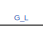
[diagram: root canvas - part 1/4, top center region]
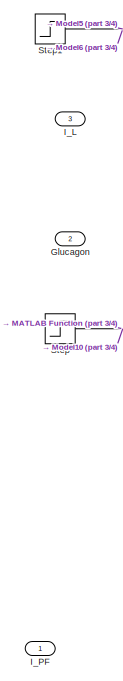
[diagram: root canvas - part 2/4, middle left region]
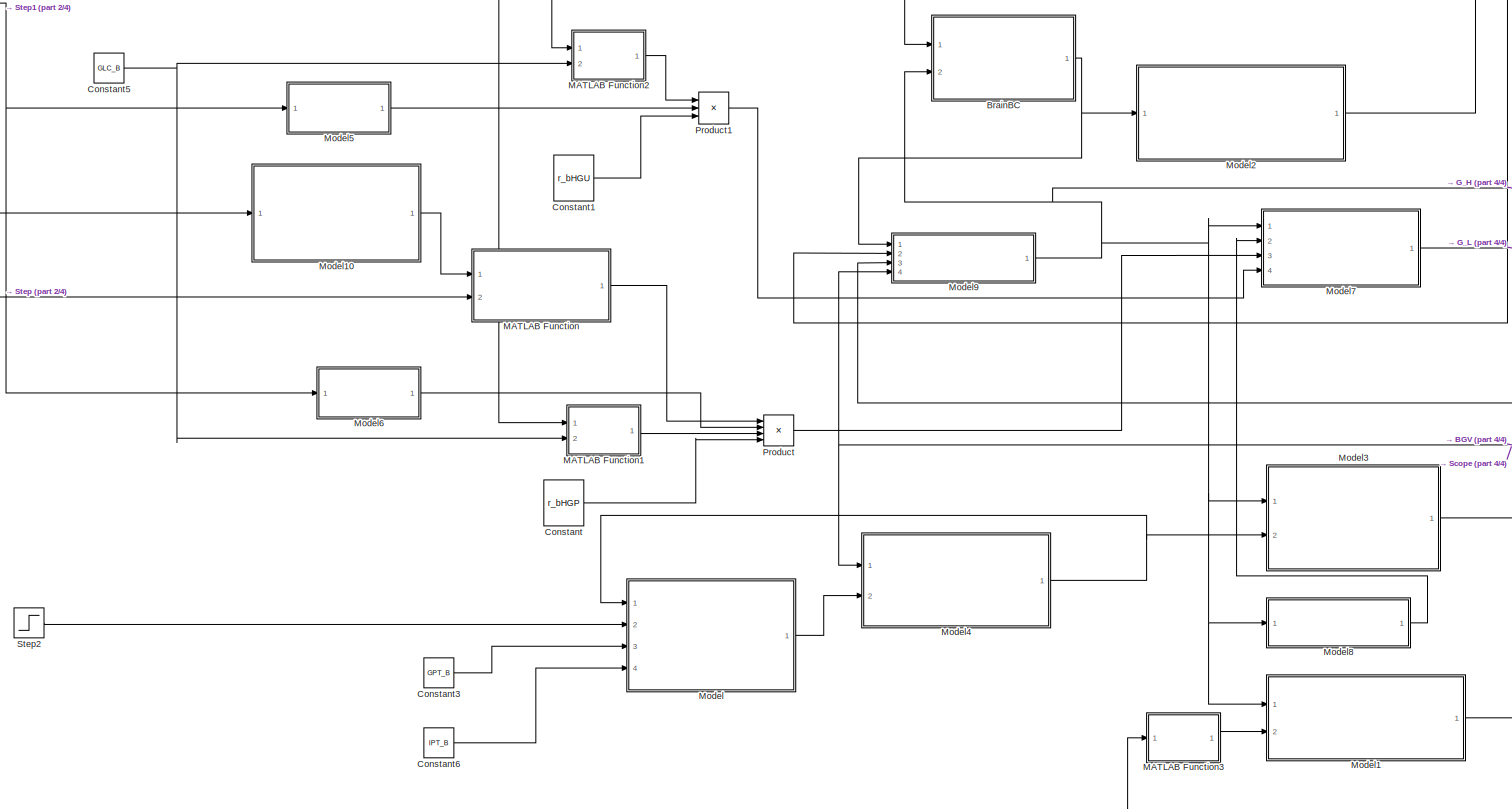
[diagram: root canvas - part 3/4, most of the canvas]
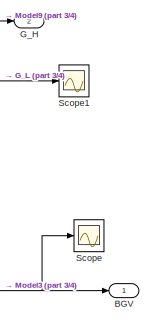
[diagram: root canvas - part 4/4, middle right region]
MODEL slx_8afd37e5c22d
KIND model
CONFIG AbsTol = auto
CONFIG EnableMultiTasking = off
CONFIG FixedStep = auto
CONFIG MaxStep = auto
CONFIG MinStep = auto
CONFIG RelTol = 1e-3
CONFIG SampleTimeConstraint = Unconstrained
CONFIG Solver = VariableStepAuto
CONFIG SolverName = VariableStepAuto
CONFIG StartTime = 0.0
CONFIG StopTime = 100
BLOCK [Outport] BGV
  IconDisplay = Port number
  OutMin = 0
BLOCK [ModelReference] BrainBC
  ModelNameDialog = BrainBC
  ModelReferenceVersion = 1.6
  Ports = [2, 1]
BLOCK [Constant] Constant
  Value = r_bHGP
BLOCK [Constant] Constant1
  Value = r_bHGU
BLOCK [Constant] Constant3
  Value = GPT_B
BLOCK [Constant] Constant5
  Value = GLC_B
BLOCK [Constant] Constant6
  Value = IPT_B
BLOCK [Outport] G_H
  IconDisplay = Port number
  OutMin = 0
  Port = 2
BLOCK [Inport] Glucagon
  IconDisplay = Port number
  Port = 2
BLOCK [Inport] I_L
  IconDisplay = Port number
  Port = 3
BLOCK [Inport] I_PF
  IconDisplay = Port number
  OutMin = 0
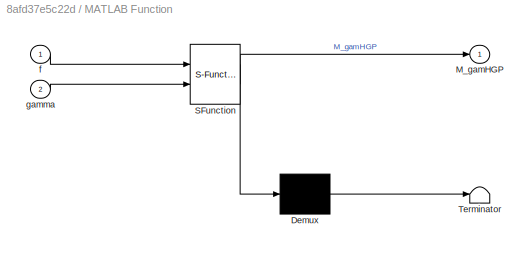
BLOCK [SubSystem] MATLAB Function
  ErrorFcn = Stateflow.Translate.translate
  PermitHierarchicalResolution = ExplicitOnly
  Ports = [2, 1]
  RequestExecContextInheritance = off
  SFBlockType = MATLAB Function
  TreatAsAtomicUnit = on
BLOCK [Demux] MATLAB Function/ Demux 
  Outputs = 1
  Ports = [1, 1]
BLOCK [S-Function] MATLAB Function/ SFunction 
  EnableBusSupport = on
  FunctionName = sf_sfun
  PortCounts = [2 2]
  Ports = [2, 2]
  SFcnIsStateOwnerBlock = off
  SFunctionDeploymentMode = off
  Tag = Stateflow S-Function glucose_subsystem 2
BLOCK [Terminator] MATLAB Function/ Terminator 
BLOCK [Outport] MATLAB Function/M_gamHGP
  IconDisplay = Port number
BLOCK [Inport] MATLAB Function/f
  IconDisplay = Port number
BLOCK [Inport] MATLAB Function/gamma
  IconDisplay = Port number
  Port = 2
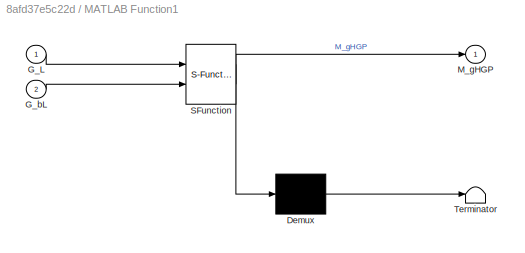
BLOCK [SubSystem] MATLAB Function1
  ErrorFcn = Stateflow.Translate.translate
  PermitHierarchicalResolution = ExplicitOnly
  Ports = [2, 1]
  RequestExecContextInheritance = off
  SFBlockType = MATLAB Function
  TreatAsAtomicUnit = on
BLOCK [Demux] MATLAB Function1/ Demux 
  Outputs = 1
  Ports = [1, 1]
BLOCK [S-Function] MATLAB Function1/ SFunction 
  EnableBusSupport = on
  FunctionName = sf_sfun
  PortCounts = [2 2]
  Ports = [2, 2]
  SFcnIsStateOwnerBlock = off
  SFunctionDeploymentMode = off
  Tag = Stateflow S-Function glucose_subsystem 1
BLOCK [Terminator] MATLAB Function1/ Terminator 
BLOCK [Inport] MATLAB Function1/G_L
  IconDisplay = Port number
BLOCK [Inport] MATLAB Function1/G_bL
  IconDisplay = Port number
  Port = 2
BLOCK [Outport] MATLAB Function1/M_gHGP
  IconDisplay = Port number
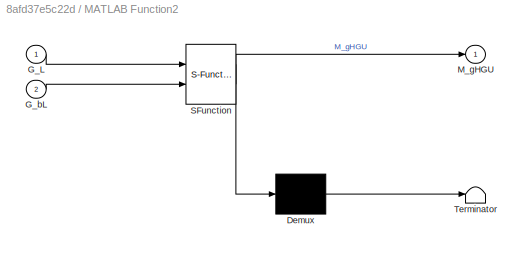
BLOCK [SubSystem] MATLAB Function2
  ErrorFcn = Stateflow.Translate.translate
  PermitHierarchicalResolution = ExplicitOnly
  Ports = [2, 1]
  RequestExecContextInheritance = off
  SFBlockType = MATLAB Function
  TreatAsAtomicUnit = on
BLOCK [Demux] MATLAB Function2/ Demux 
  Outputs = 1
  Ports = [1, 1]
BLOCK [S-Function] MATLAB Function2/ SFunction 
  EnableBusSupport = on
  FunctionName = sf_sfun
  PortCounts = [2 2]
  Ports = [2, 2]
  SFcnIsStateOwnerBlock = off
  SFunctionDeploymentMode = off
  Tag = Stateflow S-Function glucose_subsystem 3
BLOCK [Terminator] MATLAB Function2/ Terminator 
BLOCK [Inport] MATLAB Function2/G_L
  IconDisplay = Port number
BLOCK [Inport] MATLAB Function2/G_bL
  IconDisplay = Port number
  Port = 2
BLOCK [Outport] MATLAB Function2/M_gHGU
  IconDisplay = Port number
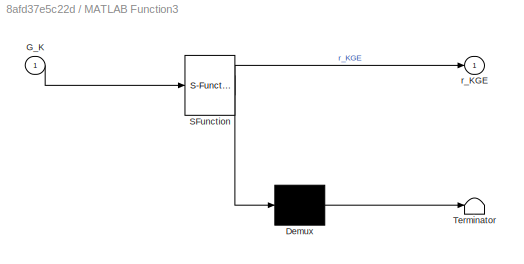
BLOCK [SubSystem] MATLAB Function3
  ErrorFcn = Stateflow.Translate.translate
  PermitHierarchicalResolution = ExplicitOnly
  Ports = [1, 1]
  RequestExecContextInheritance = off
  SFBlockType = MATLAB Function
  TreatAsAtomicUnit = on
BLOCK [Demux] MATLAB Function3/ Demux 
  Outputs = 1
  Ports = [1, 1]
BLOCK [S-Function] MATLAB Function3/ SFunction 
  EnableBusSupport = on
  FunctionName = sf_sfun
  PortCounts = [1 2]
  Ports = [1, 2]
  SFcnIsStateOwnerBlock = off
  SFunctionDeploymentMode = off
  Tag = Stateflow S-Function glucose_subsystem 4
BLOCK [Terminator] MATLAB Function3/ Terminator 
BLOCK [Inport] MATLAB Function3/G_K
  IconDisplay = Port number
BLOCK [Outport] MATLAB Function3/r_KGE
  IconDisplay = Port number
BLOCK [ModelReference] Model
  ModelNameDialog = r_PGU
  ModelReferenceVersion = 1.5
  Ports = [4, 1]
BLOCK [ModelReference] Model1
  ModelNameDialog = G_K
  ModelReferenceVersion = 1.3
  Ports = [2, 1]
BLOCK [ModelReference] Model10
  ModelNameDialog = f
  ModelReferenceVersion = 1.5
  Ports = [1, 1]
BLOCK [ModelReference] Model2
  ModelNameDialog = BrainBF
  ModelReferenceVersion = 1.6
  Ports = [1, 1]
BLOCK [ModelReference] Model3
  ModelNameDialog = G_PC
  ModelReferenceVersion = 1.4
  Ports = [2, 1]
BLOCK [ModelReference] Model4
  ModelNameDialog = G_PF
  ModelReferenceVersion = 1.3
  Ports = [2, 1]
BLOCK [ModelReference] Model5
  ModelNameDialog = M_iHGU
  ModelReferenceVersion = 1.4
  Ports = [1, 1]
BLOCK [ModelReference] Model6
  ModelNameDialog = M_iHGP
  ModelReferenceVersion = 1.2
  Ports = [1, 1]
BLOCK [ModelReference] Model7
  ModelNameDialog = Liver
  ModelReferenceVersion = 1.6
  Ports = [4, 1]
BLOCK [ModelReference] Model8
  ModelNameDialog = GI
  ModelReferenceVersion = 1.4
  Ports = [1, 1]
BLOCK [ModelReference] Model9
  ModelNameDialog = Heart
  ModelReferenceVersion = 1.4
  Ports = [4, 1]
BLOCK [Product] Product
  InputSameDT = off
  Inputs = 4
  OutDataTypeStr = Inherit: Inherit via internal rule
  Ports = [4, 1]
  RndMeth = Floor
  SaturateOnIntegerOverflow = off
BLOCK [Product] Product1
  InputSameDT = off
  Inputs = 3
  OutDataTypeStr = Inherit: Inherit via internal rule
  Ports = [3, 1]
  RndMeth = Floor
  SaturateOnIntegerOverflow = off
BLOCK [Scope] Scope
  Floating = off
  NumInputPorts = 1
  Ports = [1]
  ScopeSpecificationString = Simulink.scopes.TimeScopeBlockCfg('CurrentConfiguration', extmgr.ConfigurationSet(extmgr.Configuration('Core','General UI',true),extmgr.Configuration('Core','Source UI',true),extmgr.Configuration('Sources','WiredSimulink',true),extmgr.Configuration('Visuals','Time Domain',true,'SerializedDisplays',{struct('MinYLimReal','-19.175','MaxYLimReal','172.575','YLabelReal','','MinYLimMag','0.00000','MaxYL...<+1385ch>
BLOCK [Scope] Scope1
  Floating = off
  NumInputPorts = 1
  Ports = [1]
  ScopeSpecificationString = Simulink.scopes.TimeScopeBlockCfg('CurrentConfiguration', extmgr.ConfigurationSet(extmgr.Configuration('Core','General UI',true),extmgr.Configuration('Core','Source UI',true),extmgr.Configuration('Sources','WiredSimulink',true,'DataLoggingVariableName','ScopeData1'),extmgr.Configuration('Visuals','Time Domain',true,'SerializedDisplays',{struct('MinYLimReal','45.16101','MaxYLimReal','178.14307','YL...<+1428ch>
BLOCK [Step] Step
  SampleTime = 0
BLOCK [Step] Step1
  After = ILC_B - 6
  SampleTime = 0
BLOCK [Step] Step2
  After = IPT_B - 1
  SampleTime = 0
NET BrainBC:1 -> Model2:1, Model9:1
LINE Constant1:1 -> Product1:3
LINE Constant3:1 -> Model:3
NET Constant5:1 -> MATLAB Function1:2, MATLAB Function2:2
LINE Constant6:1 -> Model:4
LINE Constant:1 -> Product:4
LINE MATLAB Function1:1 -> Product:3
LINE MATLAB Function2:1 -> Product1:1
LINE MATLAB Function3:1 -> Model1:2
LINE MATLAB Function:1 -> Product:1
LINE Model10:1 -> MATLAB Function:1
NET Model1:1 -> MATLAB Function3:1, Model9:3
LINE Model2:1 -> BrainBC:1
NET Model3:1 -> BGV:1, Model4:1, Model9:4, Scope:1
NET Model4:1 -> Model3:2, Model:1
LINE Model5:1 -> Product1:2
LINE Model6:1 -> Product:2
NET Model7:1 -> MATLAB Function1:1, MATLAB Function2:1, Model9:2, Scope1:1
LINE Model8:1 -> Model7:2
NET Model9:1 -> BrainBC:2, G_H:1, Model1:1, Model3:1, Model7:1, Model8:1
LINE Model:1 -> Model4:2
LINE Product1:1 -> Model7:4
LINE Product:1 -> Model7:3
NET Step1:1 -> Model5:1, Model6:1
LINE Step2:1 -> Model:2
NET Step:1 -> MATLAB Function:2, Model10:1
note: NET lines group one-source signal fan-out (src -> all destinations, sorted); 1:1 wires keep LINE
CHART MATLAB Function1 states=1 transitions=1
  STATE_LABEL 'eML_blk_kernel()'
  STATE_LABEL 'SCRIPT:\nfunction M_gHGP = fcn(G_L, G_bL)\n\nM_gHGP = 1.42 - 1.41*tanh(0.62*(G_L/G_bL - 0.497));\n'
CHART MATLAB Function states=1 transitions=1
  STATE_LABEL 'eML_blk_kernel()'
  STATE_LABEL 'SCRIPT:\nfunction M_gamHGP = fcn(f, gamma)\n% GPT_B IS HARDCODED HERE!\nM_gamHGP = 2.7*tanh(0.39*gamma/147.844) - f;\n'
CHART MATLAB Function2 states=1 transitions=1
  STATE_LABEL 'eML_blk_kernel()'
  STATE_LABEL 'SCRIPT:\nfunction M_gHGU = fcn(G_L, G_bL)\n\nM_gHGU = 5.66*(1 + tanh(2.44*(G_L/G_bL - 1.48)));\n'
CHART MATLAB Function3 states=1 transitions=1
  STATE_LABEL 'eML_blk_kernel()'
  STATE_LABEL 'SCRIPT:\nfunction r_KGE = fcn(G_K)\n\nr_KGE = 71+(71*tanh(0.11*(G_K - 460)));\n'
